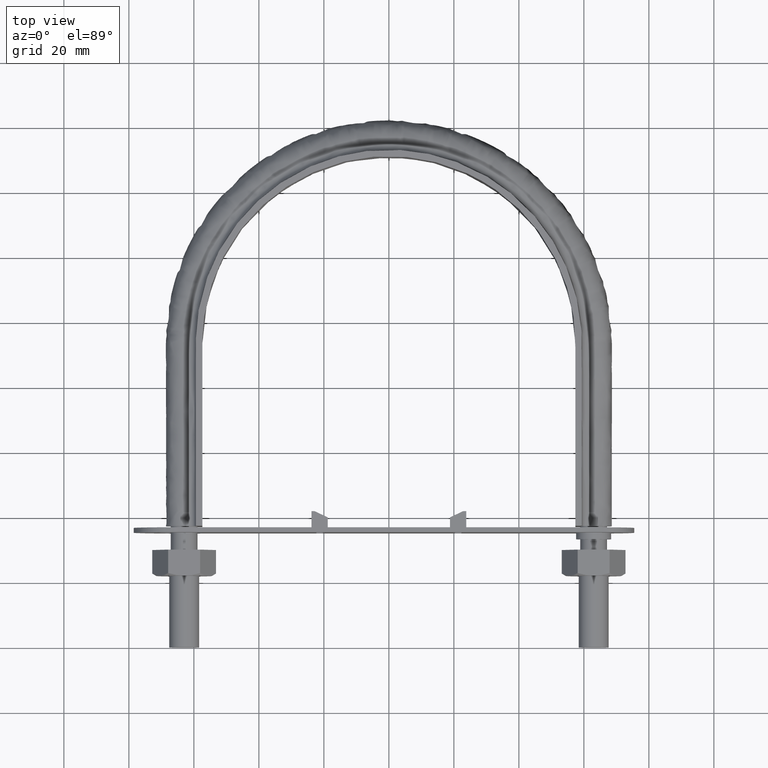
[diagram: clean part render]
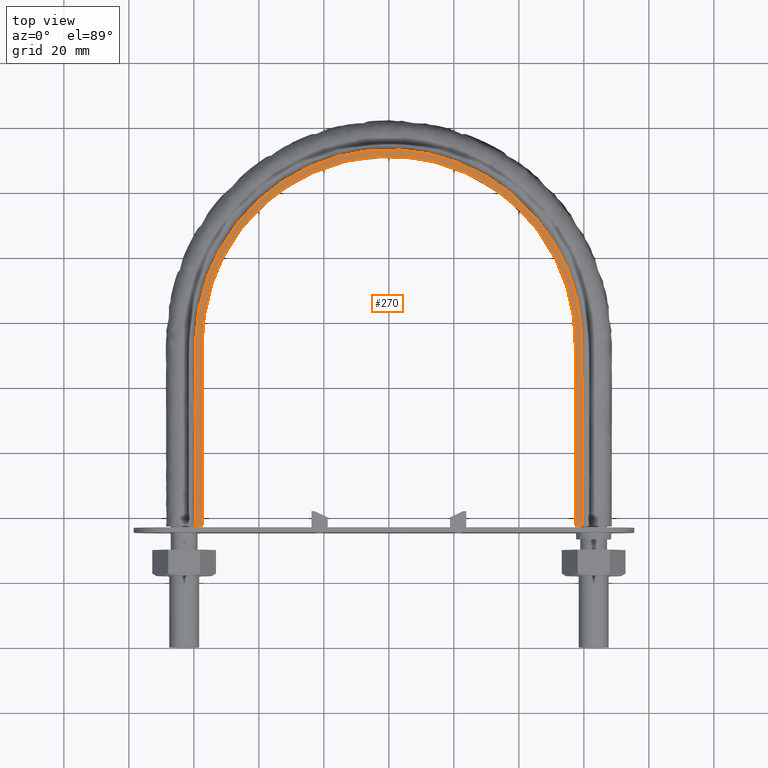
[diagram: same view with one face highlighted and labeled with its STEP entity id]
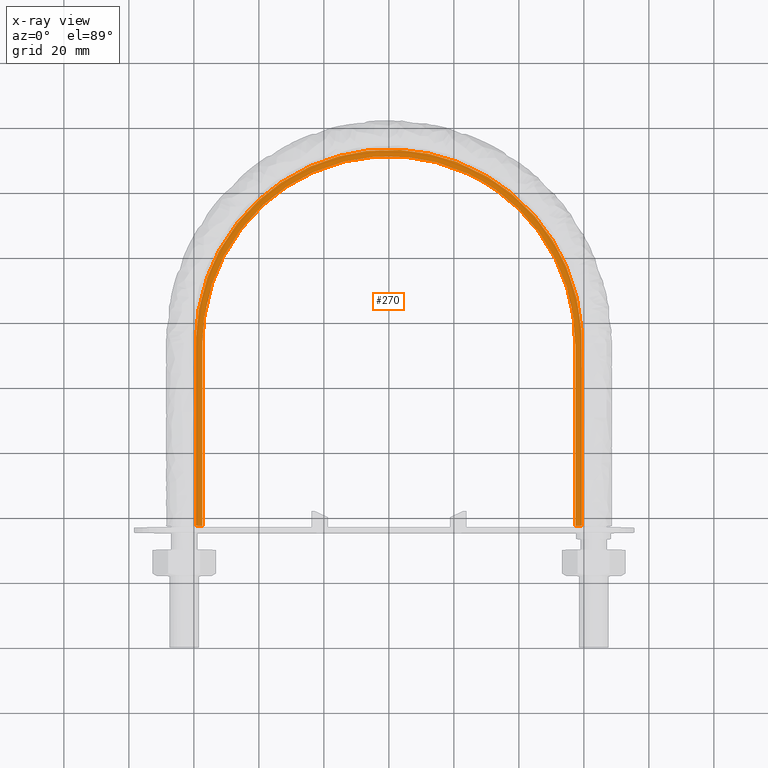
[diagram: x-ray of the same camera — body ghosted, the highlighted face saturated]
A machine part, top view. The second image highlights one B-rep face of the part: STEP entity #270.
The next image is the same camera in x-ray: the body ghosted, the highlighted face saturated — about 0% of this face is hidden behind the body in this view.
In plain terms, the highlighted planar face has unit normal (0, 0, 1).
Its self-contained STEP definition (entity closure, byte-faithful):
#270 = ADVANCED_FACE( '', ( #386 ), #387, .T. );
#386 = FACE_OUTER_BOUND( '', #639, .T. );
#387 = PLANE( '', #640 );
#639 = EDGE_LOOP( '', ( #1574, #1575, #1576, #1577 ) );
#640 = AXIS2_PLACEMENT_3D( '', #1578, #1579, #1580 );
#1574 = ORIENTED_EDGE( '', *, *, #2360, .T. );
#1575 = ORIENTED_EDGE( '', *, *, #2368, .F. );
#1576 = ORIENTED_EDGE( '', *, *, #2363, .T. );
#1577 = ORIENTED_EDGE( '', *, *, #2369, .F. );
#1578 = CARTESIAN_POINT( '', ( 75.0000000000000, 167.300000000000, 12.5000000000000 ) );
#1579 = DIRECTION( '', ( 0.000000000000000, 0.000000000000000, 1.00000000000000 ) );
#1580 = DIRECTION( '', ( 1.22460635382238E-016, 1.00000000000000, 0.000000000000000 ) );
#2360 = EDGE_CURVE( '', #2600, #2597, #2601, .T. );
#2363 = EDGE_CURVE( '', #2605, #2606, #2607, .T. );
#2368 = EDGE_CURVE( '', #2605, #2597, #2614, .T. );
#2369 = EDGE_CURVE( '', #2600, #2606, #2615, .T. );
#2597 = VERTEX_POINT( '', #2991 );
#2600 = VERTEX_POINT( '', #2995 );
#2601 = LINE( '', #2996, #2997 );
#2605 = VERTEX_POINT( '', #3032 );
#2606 = VERTEX_POINT( '', #3033 );
#2607 = LINE( '', #3034, #3035 );
#2614 = B_SPLINE_CURVE_WITH_KNOTS( '', 3, ( #3089, #3090, #3091, #3092, #3093, #3094, #3095, #3096, #3097, #3098, #3099, #3100, #3101, #3102, #3103, #3104, #3105, #3106, #3107, #3108, #3109, #3110, #3111, #3112, #3113, #3114, #3115, #3116, #3117, #3118, #3119, #3120, #3121, #3122, #3123, #3124, #3125, #3126, #3127, #3128, #3129, #3130, #3131, #3132, #3133, #3134, #3135, #3136, #3137, #3138, #3139, #3140, #3141, #3142, #3143, #3144, #3145, #3146, #3147, #3148, #3149, #3150, #3151, #3152, #3153, #3154, #3155, #3156, #3157, #3158, #3159, #3160, #3161, #3162, #3163, #3164, #3165, #3166, #3167, #3168, #3169, #3170, #3171, #3172, #3173, #3174, #3175, #3176 ), .UNSPECIFIED., .F., .F., ( 4, 1, 2, 2, 2, 2, 2, 2, 2, 2, 2, 2, 2, 2, 2, 2, 2, 2, 2, 2, 2, 2, 2, 2, 2, 2, 2, 2, 2, 2, 2, 2, 2, 2, 2, 2, 2, 2, 2, 2, 2, 2, 2, 1, 4 ), ( 6.93889390390723E-018, 0.0368006591004078, 0.0552009886506117, 0.0575010298443872, 0.0598010710381627, 0.0644011534257136, 0.0736013182008154, 0.0782014005883663, 0.0805014417821417, 0.0828014829759172, 0.0920016477510191, 0.0966017301385700, 0.0989017713323454, 0.101201812526121, 0.110401977301223, 0.115002059688774, 0.117302100882549, 0.119602142076324, 0.128802306851426, 0.133402389238977, 0.135702430432752, 0.138002471626528, 0.147202636401630, 0.156402801176731, 0.158702842370507, 0.161002883564282, 0.165602965951833, 0.174803130726935, 0.177103171920710, 0.179403213114486, 0.184003295502037, 0.193203460277138, 0.195503501470914, 0.197803542664689, 0.202403625052240, 0.211603789827342, 0.213903831021117, 0.216203872214893, 0.220803954602443, 0.230004119377545, 0.234604201765096, 0.236904242958871, 0.239204284152646, 0.257604613702849, 0.294405272803255 ), .UNSPECIFIED. );
#2615 = B_SPLINE_CURVE_WITH_KNOTS( '', 3, ( #3177, #3178, #3179, #3180, #3181, #3182, #3183, #3184, #3185, #3186, #3187, #3188, #3189, #3190, #3191, #3192 ), .UNSPECIFIED., .F., .F., ( 4, 3, 1, 1, 1, 1, 1, 1, 3, 4 ), ( 0.0630615640599001, 1.00000000000000, 2.00000000000000, 3.00000000000000, 4.00000000000000, 5.00000000000000, 6.00000000000000, 7.00000000000000, 8.00000000000000, 8.93693843594010 ), .UNSPECIFIED. );
#2991 = CARTESIAN_POINT( '', ( -57.4000000000000, 37.3000000000000, 12.5000000000000 ) );
#2995 = CARTESIAN_POINT( '', ( -59.4000000000000, 37.3000000000000, 12.5000000000000 ) );
#2996 = CARTESIAN_POINT( '', ( -75.0000000000000, 37.3000000000000, 12.5000000000000 ) );
#2997 = VECTOR( '', #3870, 1000.00000000000 );
#3032 = CARTESIAN_POINT( '', ( 57.4000000000000, 37.3000000000000, 12.5000000000000 ) );
#3033 = CARTESIAN_POINT( '', ( 59.4000000000000, 37.3000000000000, 12.5000000000000 ) );
#3034 = CARTESIAN_POINT( '', ( -75.0000000000000, 37.3000000000000, 12.5000000000000 ) );
#3035 = VECTOR( '', #3872, 1000.00000000000 );
#3089 = CARTESIAN_POINT( '', ( 57.4000000000000, 37.3000000000000, 12.5000000000000 ) );
#3090 = CARTESIAN_POINT( '', ( 57.4000000000000, 49.5668971504807, 12.5000000000000 ) );
#3091 = CARTESIAN_POINT( '', ( 57.3999999999999, 67.9672428762017, 12.5000000000000 ) );
#3092 = CARTESIAN_POINT( '', ( 57.4000000000000, 86.3675886019228, 12.5000000000000 ) );
#3093 = CARTESIAN_POINT( '', ( 57.4000000000000, 93.2677182490682, 12.5000000000000 ) );
#3094 = CARTESIAN_POINT( '', ( 57.4036066457801, 94.0344041032519, 12.5000000000000 ) );
#3095 = CARTESIAN_POINT( '', ( 57.3712056389476, 95.5677232845277, 12.5000000000000 ) );
#3096 = CARTESIAN_POINT( '', ( 57.3393359788147, 96.3353753045869, 12.5000000000000 ) );
#3097 = CARTESIAN_POINT( '', ( 57.1976234100830, 98.6306634699641, 12.5000000000000 ) );
#3098 = CARTESIAN_POINT( '', ( 57.0421967518527, 100.147180453960, 12.5000000000000 ) );
#3099 = CARTESIAN_POINT( '', ( 56.4004013757545, 104.657352705709, 12.5000000000000 ) );
#3100 = CARTESIAN_POINT( '', ( 55.7399883057787, 107.611959318388, 12.5000000000000 ) );
#3101 = CARTESIAN_POINT( '', ( 54.4013047063944, 111.965777471156, 12.5000000000000 ) );
#3102 = CARTESIAN_POINT( '', ( 53.8966972928596, 113.403952132018, 12.5000000000000 ) );
#3103 = CARTESIAN_POINT( '', ( 53.0487681131459, 115.540793277909, 12.5000000000000 ) );
#3104 = CARTESIAN_POINT( '', ( 52.7511260023257, 116.248939019186, 12.5000000000000 ) );
#3105 = CARTESIAN_POINT( '', ( 52.1306487491250, 117.645579267383, 12.5000000000000 ) );
#3106 = CARTESIAN_POINT( '', ( 51.8071932048134, 118.335643312284, 12.5000000000000 ) );
#3107 = CARTESIAN_POINT( '', ( 50.1243560027938, 121.745011154793, 12.5000000000000 ) );
#3108 = CARTESIAN_POINT( '', ( 48.5704537429598, 124.342805722192, 12.5000000000000 ) );
#3109 = CARTESIAN_POINT( '', ( 45.9378759805746, 128.051022440817, 12.5000000000000 ) );
#3110 = CARTESIAN_POINT( '', ( 45.0097482486539, 129.255485755391, 12.5000000000000 ) );
#3111 = CARTESIAN_POINT( '', ( 43.5399840512469, 131.013724230868, 12.5000000000000 ) );
#3112 = CARTESIAN_POINT( '', ( 43.0360401908087, 131.592882580464, 12.5000000000000 ) );
#3113 = CARTESIAN_POINT( '', ( 42.0071679355061, 132.728730541199, 12.5000000000000 ) );
#3114 = CARTESIAN_POINT( '', ( 41.4830799771193, 133.284602734684, 12.5000000000000 ) );
#3115 = CARTESIAN_POINT( '', ( 38.8150256208344, 136.004509636062, 12.5000000000000 ) );
#3116 = CARTESIAN_POINT( '', ( 36.5289375337687, 137.991083678086, 12.5000000000000 ) );
#3117 = CARTESIAN_POINT( '', ( 32.8725465474706, 140.687177301449, 12.5000000000000 ) );
#3118 = CARTESIAN_POINT( '', ( 31.6159998625506, 141.538738914915, 12.5000000000000 ) );
#3119 = CARTESIAN_POINT( '', ( 29.6741600235064, 142.744883379300, 12.5000000000000 ) );
#3120 = CARTESIAN_POINT( '', ( 29.0173621705765, 143.135046972002, 12.5000000000000 ) );
#3121 = CARTESIAN_POINT( '', ( 27.6844813094559, 143.891293691475, 12.5000000000000 ) );
#3122 = CARTESIAN_POINT( '', ( 27.0092860879620, 144.256786401143, 12.5000000000000 ) );
#3123 = CARTESIAN_POINT( '', ( 23.6148955512580, 146.008321558919, 12.5000000000000 ) );
#3124 = CARTESIAN_POINT( '', ( 20.8188839208597, 147.181221130253, 12.5000000000000 ) );
#3125 = CARTESIAN_POINT( '', ( 16.5063575914378, 148.604430974850, 12.5000000000000 ) );
#3126 = CARTESIAN_POINT( '', ( 15.0489724833801, 149.022456876127, 12.5000000000000 ) );
#3127 = CARTESIAN_POINT( '', ( 12.8322199583375, 149.562489310091, 12.5000000000000 ) );
#3128 = CARTESIAN_POINT( '', ( 12.0881682606315, 149.727937467103, 12.5000000000000 ) );
#3129 = CARTESIAN_POINT( '', ( 10.5896803128533, 150.029378956679, 12.5000000000000 ) );
#3130 = CARTESIAN_POINT( '', ( 9.83354107507632, 150.165648447287, 12.5000000000000 ) );
#3131 = CARTESIAN_POINT( '', ( 6.05033946504659, 150.768951449387, 12.5000000000000 ) );
#3132 = CARTESIAN_POINT( '', ( 3.02331961872741, 151.004107282322, 12.5000000000000 ) );
#3133 = CARTESIAN_POINT( '', ( -3.03159229771714, 151.003674706656, 12.5000000000000 ) );
#3134 = CARTESIAN_POINT( '', ( -6.05948435362853, 150.768093969407, 12.5000000000000 ) );
#3135 = CARTESIAN_POINT( '', ( -9.84492369258710, 150.163681704028, 12.5000000000000 ) );
#3136 = CARTESIAN_POINT( '', ( -10.6002721762768, 150.027389123451, 12.5000000000000 ) );
#3137 = CARTESIAN_POINT( '', ( -12.0978185021848, 149.725853405146, 12.5000000000000 ) );
#3138 = CARTESIAN_POINT( '', ( -12.8414452252184, 149.560367013092, 12.5000000000000 ) );
#3139 = CARTESIAN_POINT( '', ( -15.0570550081489, 149.020235378931, 12.5000000000000 ) );
#3140 = CARTESIAN_POINT( '', ( -16.5138535706967, 148.602163316093, 12.5000000000000 ) );
#3141 = CARTESIAN_POINT( '', ( -20.8250913381980, 147.178758755140, 12.5000000000000 ) );
#3142 = CARTESIAN_POINT( '', ( -23.6208691240754, 146.005657850112, 12.5000000000000 ) );
#3143 = CARTESIAN_POINT( '', ( -27.0156329102763, 144.253406103617, 12.5000000000000 ) );
#3144 = CARTESIAN_POINT( '', ( -27.6910147520963, 143.887696886022, 12.5000000000000 ) );
#3145 = CARTESIAN_POINT( '', ( -29.0234575114926, 143.131477440111, 12.5000000000000 ) );
#3146 = CARTESIAN_POINT( '', ( -29.6800585802789, 142.741324040592, 12.5000000000000 ) );
#3147 = CARTESIAN_POINT( '', ( -31.6213689725300, 141.535193660409, 12.5000000000000 ) );
#3148 = CARTESIAN_POINT( '', ( -32.8776437603807, 140.683619457022, 12.5000000000000 ) );
#3149 = CARTESIAN_POINT( '', ( -36.5334220827475, 137.987374398227, 12.5000000000000 ) );
#3150 = CARTESIAN_POINT( '', ( -38.8193751731555, 136.000549631674, 12.5000000000000 ) );
#3151 = CARTESIAN_POINT( '', ( -41.4874843976751, 133.279993585617, 12.5000000000000 ) );
#3152 = CARTESIAN_POINT( '', ( -42.0115944312470, 132.723974530570, 12.5000000000000 ) );
#3153 = CARTESIAN_POINT( '', ( -43.0405299781914, 131.587794110931, 12.5000000000000 ) );
#3154 = CARTESIAN_POINT( '', ( -43.5442393747026, 131.008765306377, 12.5000000000000 ) );
#3155 = CARTESIAN_POINT( '', ( -45.0135877457228, 129.250627800788, 12.5000000000000 ) );
#3156 = CARTESIAN_POINT( '', ( -45.9415210243652, 128.046162448528, 12.5000000000000 ) );
#3157 = CARTESIAN_POINT( '', ( -48.5736917716305, 124.337694282144, 12.5000000000000 ) );
#3158 = CARTESIAN_POINT( '', ( -50.1275589688898, 121.739408642437, 12.5000000000000 ) );
#3159 = CARTESIAN_POINT( '', ( -51.8104283189419, 118.328866111214, 12.5000000000000 ) );
#3160 = CARTESIAN_POINT( '', ( -52.1338941649286, 117.638538815899, 12.5000000000000 ) );
#3161 = CARTESIAN_POINT( '', ( -52.7543954652597, 116.241312252746, 12.5000000000000 ) );
#3162 = CARTESIAN_POINT( '', ( -53.0520667494114, 115.532782600104, 12.5000000000000 ) );
#3163 = CARTESIAN_POINT( '', ( -53.8993605656226, 113.396631283103, 12.5000000000000 ) );
#3164 = CARTESIAN_POINT( '', ( -54.4036525659498, 111.958777453083, 12.5000000000000 ) );
#3165 = CARTESIAN_POINT( '', ( -55.7415838846628, 107.605493588584, 12.5000000000000 ) );
#3166 = CARTESIAN_POINT( '', ( -56.4017548199479, 104.650676383386, 12.5000000000000 ) );
#3167 = CARTESIAN_POINT( '', ( -57.0431251208450, 100.139233624254, 12.5000000000000 ) );
#3168 = CARTESIAN_POINT( '', ( -57.1984001624354, 98.6221331309984, 12.5000000000000 ) );
#3169 = CARTESIAN_POINT( '', ( -57.3398068241163, 96.3257053568890, 12.5000000000000 ) );
#3170 = CARTESIAN_POINT( '', ( -57.3715266179354, 95.5584033825671, 12.5000000000000 ) );
#3171 = CARTESIAN_POINT( '', ( -57.4036727794918, 94.0253337577368, 12.5000000000000 ) );
#3172 = CARTESIAN_POINT( '', ( -57.4000000000000, 93.2587698558454, 12.5000000000000 ) );
#3173 = CARTESIAN_POINT( '', ( -57.4000000000000, 86.3597434352617, 12.5000000000000 ) );
#3174 = CARTESIAN_POINT( '', ( -57.4000000000000, 67.9623396470387, 12.5000000000000 ) );
#3175 = CARTESIAN_POINT( '', ( -57.4000000000000, 49.5649358588155, 12.5000000000000 ) );
#3176 = CARTESIAN_POINT( '', ( -57.4000000000000, 37.3000000000000, 12.5000000000000 ) );
#3177 = CARTESIAN_POINT( '', ( -59.4000000000000, 37.3000000000000, 12.5000000000000 ) );
#3178 = CARTESIAN_POINT( '', ( -59.4000000000000, 56.0700000000000, 12.5000000000000 ) );
#3179 = CARTESIAN_POINT( '', ( -59.4000000000000, 74.8400000000000, 12.5000000000000 ) );
#3180 = CARTESIAN_POINT( '', ( -59.4000000000000, 93.6100000000000, 12.5000000000000 ) );
#3181 = CARTESIAN_POINT( '', ( -59.4000000000000, 102.484817836499, 12.5000000000000 ) );
#3182 = CARTESIAN_POINT( '', ( -55.3444933644878, 120.266836188810, 12.5000000000000 ) );
#3183 = CARTESIAN_POINT( '', ( -38.2995777447149, 141.635011205915, 12.5000000000000 ) );
#3184 = CARTESIAN_POINT( '', ( -13.6689610391051, 153.497859339137, 12.5000000000000 ) );
#3185 = CARTESIAN_POINT( '', ( 13.6689610391052, 153.497859339137, 12.5000000000000 ) );
#3186 = CARTESIAN_POINT( '', ( 38.2995777447150, 141.635011205915, 12.5000000000000 ) );
#3187 = CARTESIAN_POINT( '', ( 55.3444933644878, 120.266836188810, 12.5000000000000 ) );
#3188 = CARTESIAN_POINT( '', ( 59.4000000000000, 102.484817836499, 12.5000000000000 ) );
#3189 = CARTESIAN_POINT( '', ( 59.4000000000000, 93.6100000000000, 12.5000000000000 ) );
#3190 = CARTESIAN_POINT( '', ( 59.4000000000000, 74.8400000000000, 12.5000000000000 ) );
#3191 = CARTESIAN_POINT( '', ( 59.4000000000000, 56.0700000000000, 12.5000000000000 ) );
#3192 = CARTESIAN_POINT( '', ( 59.4000000000000, 37.3000000000000, 12.5000000000000 ) );
#3870 = DIRECTION( '', ( 1.00000000000000, -1.22460635382238E-016, 0.000000000000000 ) );
#3872 = DIRECTION( '', ( 1.00000000000000, -1.22460635382238E-016, 0.000000000000000 ) );